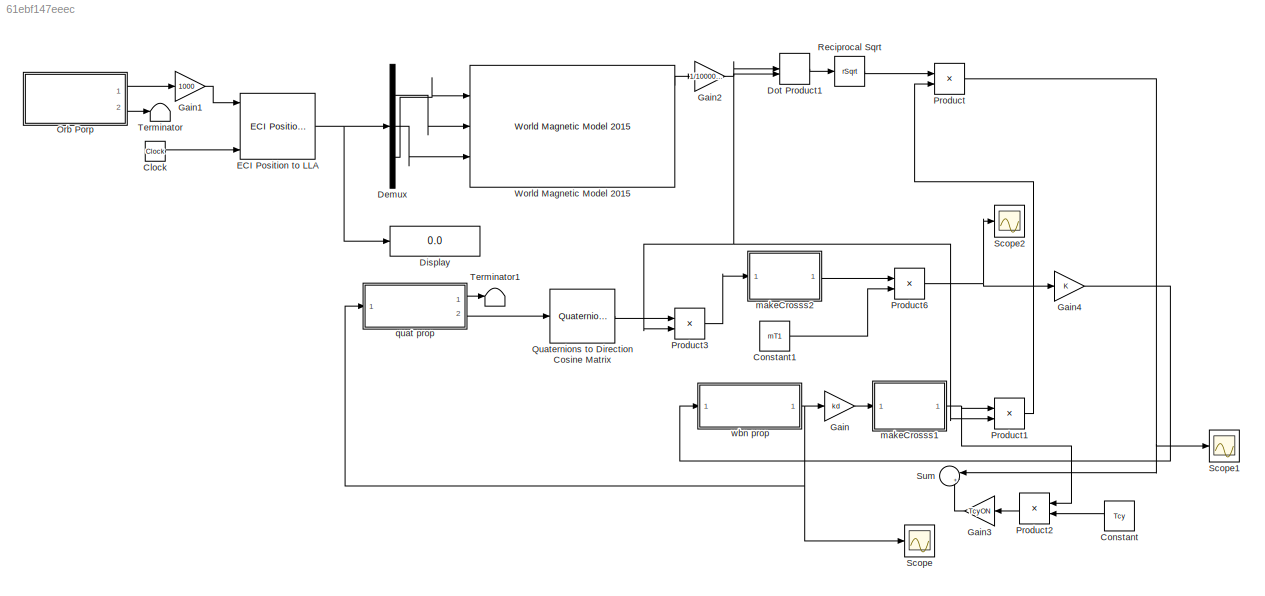
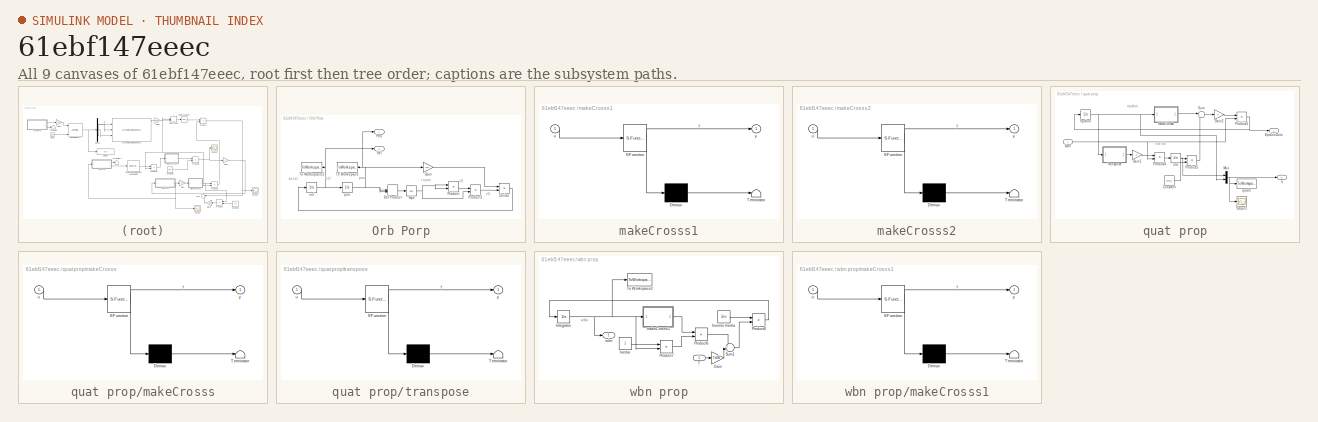
[diagram: thumbnail index - all 9 canvases of the model, root first then tree order]
MODEL slx_61ebf147eeec
KIND model
CONFIG AbsTol = auto
CONFIG FixedStep = auto
CONFIG MaxStep = auto
CONFIG MinStep = auto
CONFIG RelTol = 1e-3
CONFIG SampleTimeConstraint = Unconstrained
CONFIG Solver = ode45
CONFIG SolverMode = Auto
CONFIG SolverName = ode45
CONFIG StartTime = 0.0
CONFIG StopTime = tprop
BLOCK [Clock] Clock
BLOCK [Constant] Constant
  Commented = on
  Value = Tcy
BLOCK [Constant] Constant1
  Value = mT1
BLOCK [Demux] Demux
  DisplayOption = bar
  Outputs = 3
  Ports = [1, 3]
BLOCK [Display] Display
  Decimation = 1
  Ports = [1]
BLOCK [DotProduct] Dot Product1
  Commented = on
  OutDataTypeStr = Inherit: Inherit via internal rule
BLOCK [Reference] ECI Position to LLA  REF=aerolibtransform2/ECI Position to LLA
  AttributesFormatString = %<red>
  Ports = [6, 1]
  SourceBlock = aerolibtransform2/ECI Position to LLA
  SourceType = ECItoLLA
BLOCK [Gain] Gain
  Commented = on
  Gain = kd
  Multiplication = Matrix(K*u) (u vector)
  OutDataTypeStr = Inherit: Inherit via internal rule
  ParamDataTypeStr = Inherit: Inherit via internal rule
  SaturateOnIntegerOverflow = off
BLOCK [Gain] Gain1
  Gain = 1000
  OutDataTypeStr = Inherit: Inherit via internal rule
  ParamDataTypeStr = Inherit: Inherit via internal rule
  SaturateOnIntegerOverflow = off
BLOCK [Gain] Gain2
  Gain = 1/1000000000
  OutDataTypeStr = Inherit: Inherit via internal rule
  ParamDataTypeStr = Inherit: Inherit via internal rule
  SaturateOnIntegerOverflow = off
BLOCK [Gain] Gain3
  Commented = on
  Gain = TcyON
  OutDataTypeStr = Inherit: Inherit via internal rule
  ParamDataTypeStr = Inherit: Inherit via internal rule
  SaturateOnIntegerOverflow = off
BLOCK [Gain] Gain4
  OutDataTypeStr = Inherit: Inherit via internal rule
  ParamDataTypeStr = Inherit: Inherit via internal rule
  SaturateOnIntegerOverflow = off
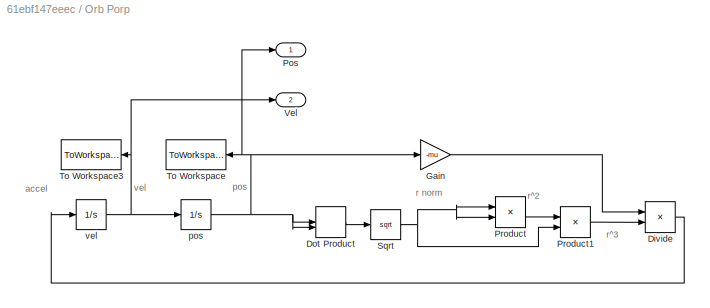
BLOCK [SubSystem] Orb Porp
  Ports = [0, 2]
  RequestExecContextInheritance = off
  Variant = off
BLOCK [Product] Orb Porp/Divide
  InputSameDT = off
  Inputs = */
  OutDataTypeStr = Inherit: Inherit via internal rule
  Ports = [2, 1]
  RndMeth = Floor
  SaturateOnIntegerOverflow = off
BLOCK [DotProduct] Orb Porp/Dot Product
  OutDataTypeStr = Inherit: Inherit via internal rule
BLOCK [Gain] Orb Porp/Gain
  Gain = -mu
  OutDataTypeStr = Inherit: Inherit via internal rule
  ParamDataTypeStr = Inherit: Inherit via internal rule
  SaturateOnIntegerOverflow = off
BLOCK [Outport] Orb Porp/Pos
  IconDisplay = Port number
BLOCK [Product] Orb Porp/Product
  InputSameDT = off
  OutDataTypeStr = Inherit: Inherit via internal rule
  Ports = [2, 1]
  RndMeth = Floor
  SaturateOnIntegerOverflow = off
BLOCK [Product] Orb Porp/Product1
  InputSameDT = off
  OutDataTypeStr = Inherit: Inherit via internal rule
  Ports = [2, 1]
  RndMeth = Floor
  SaturateOnIntegerOverflow = off
BLOCK [Sqrt] Orb Porp/Sqrt
BLOCK [ToWorkspace] Orb Porp/To Workspace
  FixptAsFi = on
  MaxDataPoints = inf
  Ports = [1]
  SampleTime = -1
  Save2DSignal = 3-D array (concatenate along third dimension)
  SaveFormat = Timeseries
  VariableName = pos
BLOCK [ToWorkspace] Orb Porp/To Workspace3
  FixptAsFi = on
  MaxDataPoints = inf
  Ports = [1]
  SampleTime = -1
  Save2DSignal = 3-D array (concatenate along third dimension)
  SaveFormat = Timeseries
  VariableName = vel
BLOCK [Outport] Orb Porp/Vel
  IconDisplay = Port number
  Port = 2
BLOCK [Integrator] Orb Porp/pos
  InitialCondition = rvect
  Ports = [1, 1]
BLOCK [Integrator] Orb Porp/vel
  InitialCondition = vvect
  Ports = [1, 1]
BLOCK [Product] Product
  Commented = on
  InputSameDT = off
  OutDataTypeStr = Inherit: Inherit via internal rule
  Ports = [2, 1]
  RndMeth = Floor
  SaturateOnIntegerOverflow = off
BLOCK [Product] Product1
  Commented = on
  InputSameDT = off
  Multiplication = Matrix(*)
  OutDataTypeStr = Inherit: Inherit via internal rule
  Ports = [2, 1]
  RndMeth = Floor
  SaturateOnIntegerOverflow = off
BLOCK [Product] Product2
  Commented = on
  InputSameDT = off
  Multiplication = Matrix(*)
  OutDataTypeStr = Inherit: Inherit via internal rule
  Ports = [2, 1]
  RndMeth = Floor
  SaturateOnIntegerOverflow = off
BLOCK [Product] Product3
  InputSameDT = off
  Multiplication = Matrix(*)
  OutDataTypeStr = Inherit: Inherit via internal rule
  Ports = [2, 1]
  RndMeth = Floor
  SaturateOnIntegerOverflow = off
BLOCK [Product] Product6
  InputSameDT = off
  Multiplication = Matrix(*)
  OutDataTypeStr = Inherit: Inherit via internal rule
  Ports = [2, 1]
  RndMeth = Floor
  SaturateOnIntegerOverflow = off
BLOCK [Reference] Quaternions to Direction Cosine Matrix  REF=aerolibtransform2/Quaternions to 
Direction Cosine Matrix
  Ports = [1, 1]
  SourceBlock = aerolibtransform2/Quaternions to \nDirection Cosine Matrix
  SourceType = Quaternion2DCM
BLOCK [Sqrt] Reciprocal Sqrt
  Commented = on
  Operator = rSqrt
BLOCK [Scope] Scope
  Ports = [1]
  ScopeSpecificationString = Simulink.scopes.TimeScopeBlockCfg('CurrentConfiguration', extmgr.ConfigurationSet(extmgr.Configuration('Core','General UI',true),extmgr.Configuration('Core','Source UI',true),extmgr.Configuration('Sources','WiredSimulink',true,'DataLoggingVariableName','ScopeData1'),extmgr.Configuration('Visuals','Time Domain',true,'SerializedDisplays',{struct('MinYLimReal','-0.12185','MaxYLimReal','0.11953','YLab...<+1472ch>
BLOCK [Scope] Scope1
  Commented = on
  Ports = [1]
  ScopeSpecificationString = Simulink.scopes.TimeScopeBlockCfg('CurrentConfiguration', extmgr.ConfigurationSet(extmgr.Configuration('Core','General UI',true),extmgr.Configuration('Core','Source UI',true),extmgr.Configuration('Sources','WiredSimulink',true,'DataLoggingVariableName','ScopeData2'),extmgr.Configuration('Visuals','Time Domain',true,'SerializedDisplays',{struct('MinYLimReal','-0.00126','MaxYLimReal','0.00126','YLab...<+1392ch>
BLOCK [Scope] Scope2
  Ports = [1]
  ScopeSpecificationString = Simulink.scopes.TimeScopeBlockCfg('CurrentConfiguration', extmgr.ConfigurationSet(extmgr.Configuration('Core','General UI',true),extmgr.Configuration('Core','Source UI',true),extmgr.Configuration('Sources','WiredSimulink',true,'DataLoggingVariableName','ScopeData1'),extmgr.Configuration('Visuals','Time Domain',true,'SerializedDisplays',{struct('MinYLimReal','-0.00008','MaxYLimReal','0.00008','YLab...<+1475ch>
BLOCK [Sum] Sum
  Commented = on
  IconShape = round
  InputSameDT = off
  Inputs = |+-
  OutDataTypeStr = Inherit: Inherit via internal rule
  Ports = [2, 1]
  SaturateOnIntegerOverflow = off
BLOCK [Terminator] Terminator
BLOCK [Terminator] Terminator1
BLOCK [Reference] World Magnetic Model 2015  REF=aerolibgravity2/World Magnetic Model 2015
  Ports = [3, 5]
  SourceBlock = aerolibgravity2/World Magnetic Model 2015
  SourceType = WorldMagneticModel2015
BLOCK [SubSystem] makeCrosss1
  Commented = on
  ErrorFcn = Stateflow.Translate.translate
  PermitHierarchicalResolution = ExplicitOnly
  Ports = [1, 1]
  RequestExecContextInheritance = off
  SFBlockType = MATLAB Function
  TreatAsAtomicUnit = on
  Variant = off
BLOCK [Demux] makeCrosss1/ Demux 
  Outputs = 1
  Ports = [1, 1]
BLOCK [S-Function] makeCrosss1/ SFunction 
  EnableBusSupport = on
  FunctionName = sf_sfun
  PortCounts = [1 2]
  Ports = [1, 2]
  SFunctionDeploymentMode = off
  Tag = Stateflow S-Function BDot 1
BLOCK [Terminator] makeCrosss1/ Terminator 
BLOCK [Inport] makeCrosss1/u
  IconDisplay = Port number
BLOCK [Outport] makeCrosss1/y
  IconDisplay = Port number
BLOCK [SubSystem] makeCrosss2
  ErrorFcn = Stateflow.Translate.translate
  PermitHierarchicalResolution = ExplicitOnly
  Ports = [1, 1]
  RequestExecContextInheritance = off
  SFBlockType = MATLAB Function
  TreatAsAtomicUnit = on
  Variant = off
BLOCK [Demux] makeCrosss2/ Demux 
  Outputs = 1
  Ports = [1, 1]
BLOCK [S-Function] makeCrosss2/ SFunction 
  EnableBusSupport = on
  FunctionName = sf_sfun
  PortCounts = [1 2]
  Ports = [1, 2]
  SFunctionDeploymentMode = off
  Tag = Stateflow S-Function BDot 2
BLOCK [Terminator] makeCrosss2/ Terminator 
BLOCK [Inport] makeCrosss2/u
  IconDisplay = Port number
BLOCK [Outport] makeCrosss2/y
  IconDisplay = Port number
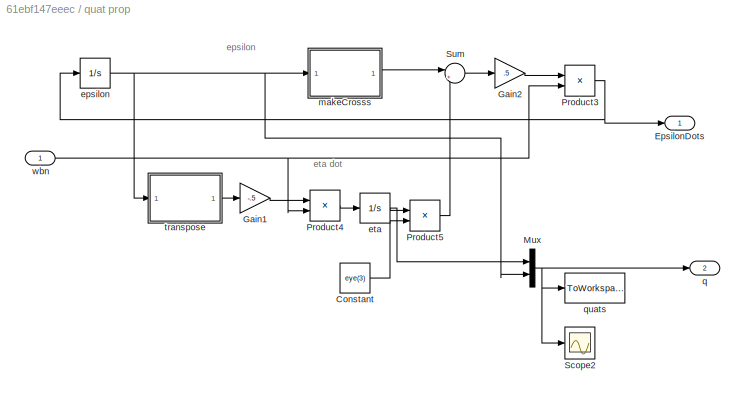
BLOCK [SubSystem] quat prop
  Ports = [1, 2]
  RequestExecContextInheritance = off
  Variant = off
BLOCK [Constant] quat prop/Constant
  Value = eye(3)
BLOCK [Outport] quat prop/EpsilonDots
  IconDisplay = Port number
BLOCK [Gain] quat prop/Gain1
  Gain = -.5
  OutDataTypeStr = Inherit: Inherit via internal rule
  ParamDataTypeStr = Inherit: Inherit via internal rule
  SaturateOnIntegerOverflow = off
BLOCK [Gain] quat prop/Gain2
  Gain = .5
  OutDataTypeStr = Inherit: Inherit via internal rule
  ParamDataTypeStr = Inherit: Inherit via internal rule
  SaturateOnIntegerOverflow = off
BLOCK [Mux] quat prop/Mux
  DisplayOption = bar
  Inputs = 2
  Ports = [2, 1]
BLOCK [Product] quat prop/Product3
  InputSameDT = off
  Multiplication = Matrix(*)
  OutDataTypeStr = Inherit: Inherit via internal rule
  Ports = [2, 1]
  RndMeth = Floor
  SaturateOnIntegerOverflow = off
BLOCK [Product] quat prop/Product4
  InputSameDT = off
  Multiplication = Matrix(*)
  OutDataTypeStr = Inherit: Inherit via internal rule
  Ports = [2, 1]
  RndMeth = Floor
  SaturateOnIntegerOverflow = off
BLOCK [Product] quat prop/Product5
  InputSameDT = off
  OutDataTypeStr = Inherit: Inherit via internal rule
  Ports = [2, 1]
  RndMeth = Floor
  SaturateOnIntegerOverflow = off
BLOCK [Scope] quat prop/Scope2
  Ports = [1]
  ScopeSpecificationString = C++SS(StrPVP('SaveName','ScopeData1'),StrPVP('LimitDataPoints','on'),StrPVP('DataFormat','Array'),StrPVP('Decimation','1'),StrPVP('BlockParamSampleInput','off'))
BLOCK [Sum] quat prop/Sum
  IconShape = round
  InputSameDT = off
  Inputs = |++
  OutDataTypeStr = Inherit: Inherit via internal rule
  Ports = [2, 1]
  SaturateOnIntegerOverflow = off
BLOCK [Integrator] quat prop/epsilon
  InitialCondition = epsilon0
  Ports = [1, 1]
BLOCK [Integrator] quat prop/eta
  InitialCondition = eta0
  Ports = [1, 1]
BLOCK [SubSystem] quat prop/makeCrosss
  ErrorFcn = Stateflow.Translate.translate
  PermitHierarchicalResolution = ExplicitOnly
  Ports = [1, 1]
  RequestExecContextInheritance = off
  SFBlockType = MATLAB Function
  TreatAsAtomicUnit = on
  Variant = off
BLOCK [Demux] quat prop/makeCrosss/ Demux 
  Outputs = 1
  Ports = [1, 1]
BLOCK [S-Function] quat prop/makeCrosss/ SFunction 
  EnableBusSupport = on
  FunctionName = sf_sfun
  PortCounts = [1 2]
  Ports = [1, 2]
  SFunctionDeploymentMode = off
  Tag = Stateflow S-Function BDot 3
BLOCK [Terminator] quat prop/makeCrosss/ Terminator 
BLOCK [Inport] quat prop/makeCrosss/u
  IconDisplay = Port number
BLOCK [Outport] quat prop/makeCrosss/y
  IconDisplay = Port number
BLOCK [Outport] quat prop/q
  IconDisplay = Port number
  Port = 2
BLOCK [ToWorkspace] quat prop/quats
  FixptAsFi = on
  MaxDataPoints = inf
  Ports = [1]
  SampleTime = -1
  Save2DSignal = 3-D array (concatenate along third dimension)
  SaveFormat = Timeseries
  VariableName = quat
BLOCK [SubSystem] quat prop/transpose
  ErrorFcn = Stateflow.Translate.translate
  PermitHierarchicalResolution = ExplicitOnly
  Ports = [1, 1]
  RequestExecContextInheritance = off
  SFBlockType = MATLAB Function
  TreatAsAtomicUnit = on
  Variant = off
BLOCK [Demux] quat prop/transpose/ Demux 
  Outputs = 1
  Ports = [1, 1]
BLOCK [S-Function] quat prop/transpose/ SFunction 
  EnableBusSupport = on
  FunctionName = sf_sfun
  PortCounts = [1 2]
  Ports = [1, 2]
  SFunctionDeploymentMode = off
  Tag = Stateflow S-Function BDot 6
BLOCK [Terminator] quat prop/transpose/ Terminator 
BLOCK [Inport] quat prop/transpose/u
  IconDisplay = Port number
BLOCK [Outport] quat prop/transpose/y
  IconDisplay = Port number
BLOCK [Inport] quat prop/wbn
  IconDisplay = Port number
BLOCK [SubSystem] wbn prop
  Ports = [1, 1]
  RequestExecContextInheritance = off
  Variant = off
BLOCK [Gain] wbn prop/Gain
  Gain = TcON
  OutDataTypeStr = Inherit: Inherit via internal rule
  ParamDataTypeStr = Inherit: Inherit via internal rule
  SaturateOnIntegerOverflow = off
BLOCK [Constant] wbn prop/Inertia
  Value = J
BLOCK [Integrator] wbn prop/Integrator
  InitialCondition = wbn0
  Ports = [1, 1]
BLOCK [Constant] wbn prop/Inverse Inertia
  Value = Jinv
BLOCK [Product] wbn prop/Product6
  InputSameDT = off
  Multiplication = Matrix(*)
  OutDataTypeStr = Inherit: Inherit via internal rule
  Ports = [2, 1]
  RndMeth = Floor
  SaturateOnIntegerOverflow = off
BLOCK [Product] wbn prop/Product7
  InputSameDT = off
  Multiplication = Matrix(*)
  OutDataTypeStr = Inherit: Inherit via internal rule
  Ports = [2, 1]
  RndMeth = Floor
  SaturateOnIntegerOverflow = off
BLOCK [Product] wbn prop/Product8
  InputSameDT = off
  Multiplication = Matrix(*)
  OutDataTypeStr = Inherit: Inherit via internal rule
  Ports = [2, 1]
  RndMeth = Floor
  SaturateOnIntegerOverflow = off
BLOCK [Sum] wbn prop/Sum1
  IconShape = round
  InputSameDT = off
  Inputs = +-
  OutDataTypeStr = Inherit: Inherit via internal rule
  Ports = [2, 1]
  SaturateOnIntegerOverflow = off
BLOCK [Inport] wbn prop/T
  IconDisplay = Port number
BLOCK [ToWorkspace] wbn prop/To Workspace2
  FixptAsFi = on
  MaxDataPoints = inf
  Ports = [1]
  SampleTime = -1
  Save2DSignal = 3-D array (concatenate along third dimension)
  SaveFormat = Timeseries
  VariableName = wbn
BLOCK [SubSystem] wbn prop/makeCrosss1
  ErrorFcn = Stateflow.Translate.translate
  PermitHierarchicalResolution = ExplicitOnly
  Ports = [1, 1]
  RequestExecContextInheritance = off
  SFBlockType = MATLAB Function
  TreatAsAtomicUnit = on
  Variant = off
BLOCK [Demux] wbn prop/makeCrosss1/ Demux 
  Outputs = 1
  Ports = [1, 1]
BLOCK [S-Function] wbn prop/makeCrosss1/ SFunction 
  EnableBusSupport = on
  FunctionName = sf_sfun
  PortCounts = [1 2]
  Ports = [1, 2]
  SFunctionDeploymentMode = off
  Tag = Stateflow S-Function BDot 4
BLOCK [Terminator] wbn prop/makeCrosss1/ Terminator 
BLOCK [Inport] wbn prop/makeCrosss1/u
  IconDisplay = Port number
BLOCK [Outport] wbn prop/makeCrosss1/y
  IconDisplay = Port number
BLOCK [Outport] wbn prop/wbn
  IconDisplay = Port number
ANNOTATION Orb Porp: accel
ANNOTATION Orb Porp: pos
ANNOTATION Orb Porp: r norm
ANNOTATION Orb Porp: r^2
ANNOTATION Orb Porp: r^3
ANNOTATION Orb Porp: vel
ANNOTATION quat prop: epsilon
ANNOTATION quat prop: eta dot
ANNOTATION wbn prop: wbn
LINE Clock:1 -> ECI Position to LLA:6
LINE Constant1:1 -> Product6:2
LINE Constant:1 -> Product2:2
LINE Demux:1 -> World Magnetic Model 2015:2
LINE Demux:2 -> World Magnetic Model 2015:3
LINE Demux:3 -> World Magnetic Model 2015:1
LINE Dot Product1:1 -> Reciprocal Sqrt:1
NET ECI Position to LLA:1 -> Demux:1, Display:1
LINE Gain1:1 -> ECI Position to LLA:1
NET Gain2:1 -> Dot Product1:1, Dot Product1:2, Product1:2, Product3:2
LINE Gain3:1 -> Sum:2
LINE Gain4:1 -> wbn prop:1
LINE Gain:1 -> makeCrosss1:1
LINE Orb Porp/Divide:1 -> Orb Porp/vel:1
LINE Orb Porp/Dot Product:1 -> Orb Porp/Sqrt:1
LINE Orb Porp/Gain:1 -> Orb Porp/Divide:1
LINE Orb Porp/Product1:1 -> Orb Porp/Divide:2
LINE Orb Porp/Product:1 -> Orb Porp/Product1:1
NET Orb Porp/Sqrt:1 -> Orb Porp/Product1:2, Orb Porp/Product:1, Orb Porp/Product:2
NET Orb Porp/pos:1 -> Orb Porp/Dot Product:1, Orb Porp/Dot Product:2, Orb Porp/Gain:1, Orb Porp/Pos:1, Orb Porp/To Workspace:1
NET Orb Porp/vel:1 -> Orb Porp/To Workspace3:1, Orb Porp/Vel:1, Orb Porp/pos:1
LINE Orb Porp:1 -> Gain1:1
LINE Orb Porp:2 -> Terminator:1
LINE Product1:1 -> Product:2
LINE Product2:1 -> Gain3:1
LINE Product3:1 -> makeCrosss2:1
NET Product6:1 -> Gain4:1, Scope2:1
NET Product:1 -> Scope1:1, Sum:1
LINE Quaternions to Direction Cosine Matrix:1 -> Product3:1
LINE Reciprocal Sqrt:1 -> Product:1
LINE World Magnetic Model 2015:1 -> Gain2:1
NET makeCrosss1:1 -> Product1:1, Product2:1
LINE makeCrosss2:1 -> Product6:1
LINE quat prop/Constant:1 -> quat prop/Product5:2
LINE quat prop/Gain1:1 -> quat prop/Product4:1
LINE quat prop/Gain2:1 -> quat prop/Product3:1
NET quat prop/Mux:1 -> quat prop/Scope2:1, quat prop/q:1, quat prop/quats:1
NET quat prop/Product3:1 -> quat prop/EpsilonDots:1, quat prop/epsilon:1
LINE quat prop/Product4:1 -> quat prop/eta:1
LINE quat prop/Product5:1 -> quat prop/Sum:2
LINE quat prop/Sum:1 -> quat prop/Gain2:1
NET quat prop/epsilon:1 -> quat prop/Mux:2, quat prop/makeCrosss:1, quat prop/transpose:1
NET quat prop/eta:1 -> quat prop/Mux:1, quat prop/Product5:1
LINE quat prop/makeCrosss:1 -> quat prop/Sum:1
LINE quat prop/transpose:1 -> quat prop/Gain1:1
NET quat prop/wbn:1 -> quat prop/Product3:2, quat prop/Product4:2
LINE quat prop:1 -> Terminator1:1
LINE quat prop:2 -> Quaternions to Direction Cosine Matrix:1
LINE wbn prop/Gain:1 -> wbn prop/Sum1:2
LINE wbn prop/Inertia:1 -> wbn prop/Product7:1
NET wbn prop/Integrator:1 -> wbn prop/Product7:2, wbn prop/To Workspace2:1, wbn prop/makeCrosss1:1, wbn prop/wbn:1
LINE wbn prop/Inverse Inertia:1 -> wbn prop/Product8:1
LINE wbn prop/Product6:1 -> wbn prop/Sum1:1
LINE wbn prop/Product7:1 -> wbn prop/Product6:2
LINE wbn prop/Product8:1 -> wbn prop/Integrator:1
LINE wbn prop/Sum1:1 -> wbn prop/Product8:2
LINE wbn prop/T:1 -> wbn prop/Gain:1
LINE wbn prop/makeCrosss1:1 -> wbn prop/Product6:1
NET wbn prop:1 -> Gain:1, Scope:1, quat prop:1
note: NET lines group one-source signal fan-out (src -> all destinations, sorted); 1:1 wires keep LINE
CHART makeCrosss1 states=1 transitions=1
  STATE_LABEL 'eML_blk_kernel()'
  STATE_LABEL 'SCRIPT:\nfunction y = fcn(u)\n%#codegen\nEx = u(1);\nEy = u(2);\nEz = u(3);\n\ny = [0 -Ez Ey; Ez 0 -Ex; -Ey Ex 0];'
CHART makeCrosss2 states=1 transitions=1
  STATE_LABEL 'eML_blk_kernel()'
  STATE_LABEL 'SCRIPT:\nfunction y = fcn(u)\n%#codegen\nEx = u(1);\nEy = u(2);\nEz = u(3);\n\ny = [0 -Ez Ey; Ez 0 -Ex; -Ey Ex 0];'
CHART quat prop/makeCrosss states=1 transitions=1
  STATE_LABEL 'eML_blk_kernel()'
  STATE_LABEL 'SCRIPT:\nfunction y = fcn(u)\n%#codegen\nEx = u(1);\nEy = u(2);\nEz = u(3);\n\ny = [0 -Ez Ey; Ez 0 -Ex; -Ey Ex 0];'
CHART wbn prop/makeCrosss1 states=1 transitions=1
  STATE_LABEL 'eML_blk_kernel()'
  STATE_LABEL 'SCRIPT:\nfunction y = fcn(u)\n%#codegen\nEx = u(1);\nEy = u(2);\nEz = u(3);\n\ny = [0 -Ez Ey; Ez 0 -Ex; -Ey Ex 0];'
CHART quat prop/transpose states=1 transitions=1
  STATE_LABEL 'eML_blk_kernel()'
  STATE_LABEL "SCRIPT:\nfunction y = fcn(u)\n%#codegen\n\ny = u';"
